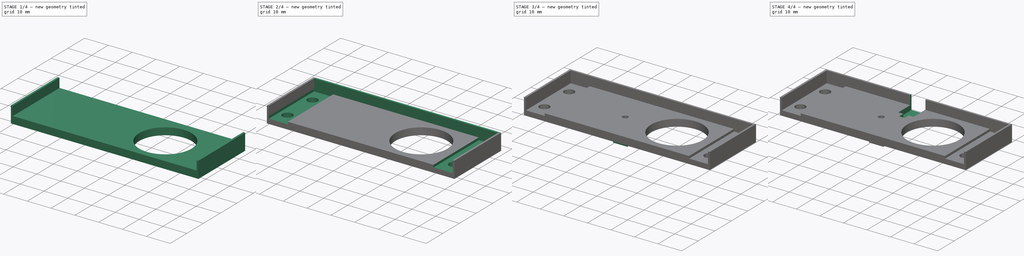
[diagram: build sequence overview — one tinted view per stage of 4, left to right]
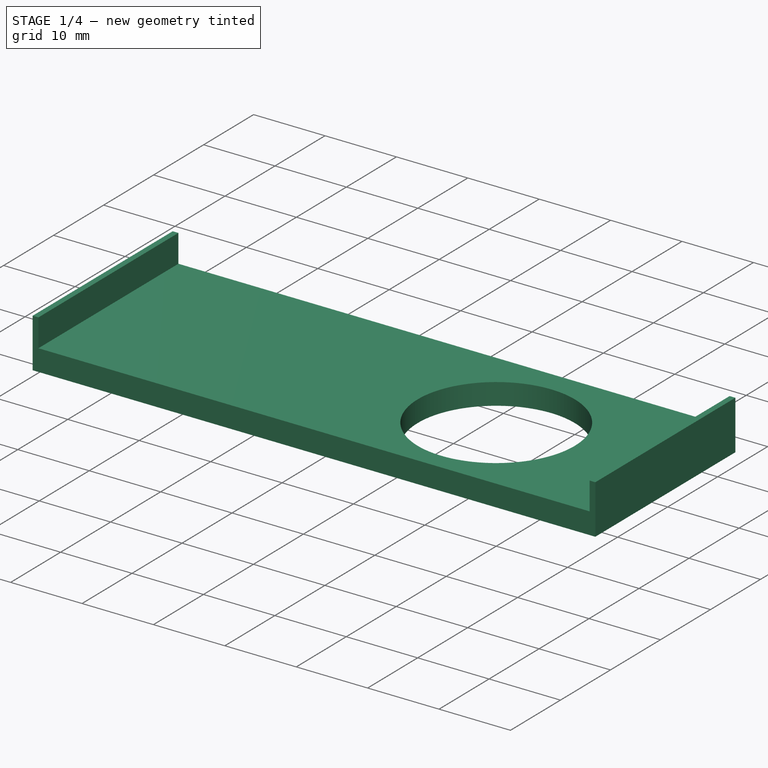
[diagram: stage 1 of 4 — iso view after this stage's code; geometry added in this stage tinted green]
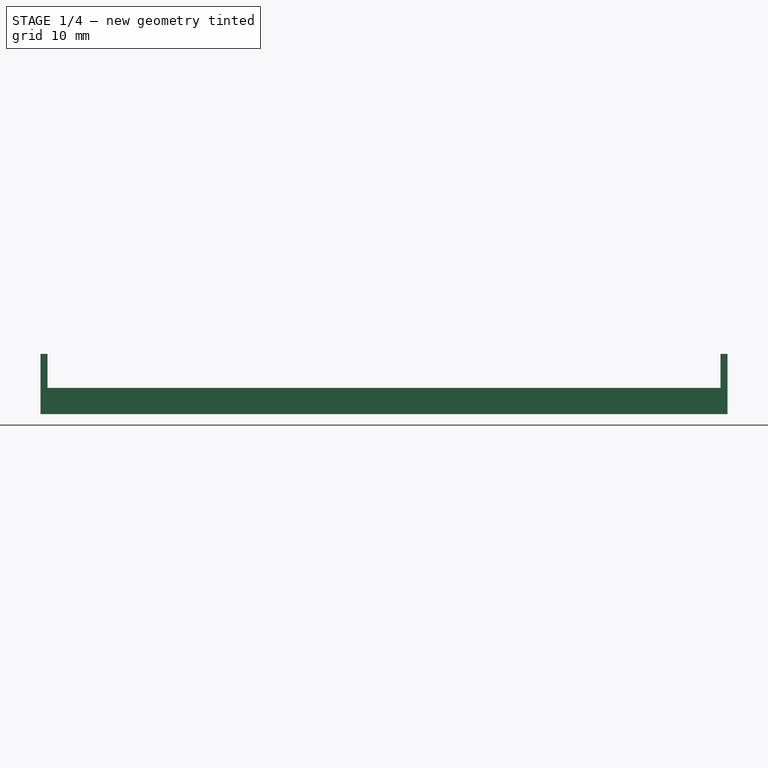
[diagram: stage 1 of 4 — front view after this stage's code; geometry added in this stage tinted green]
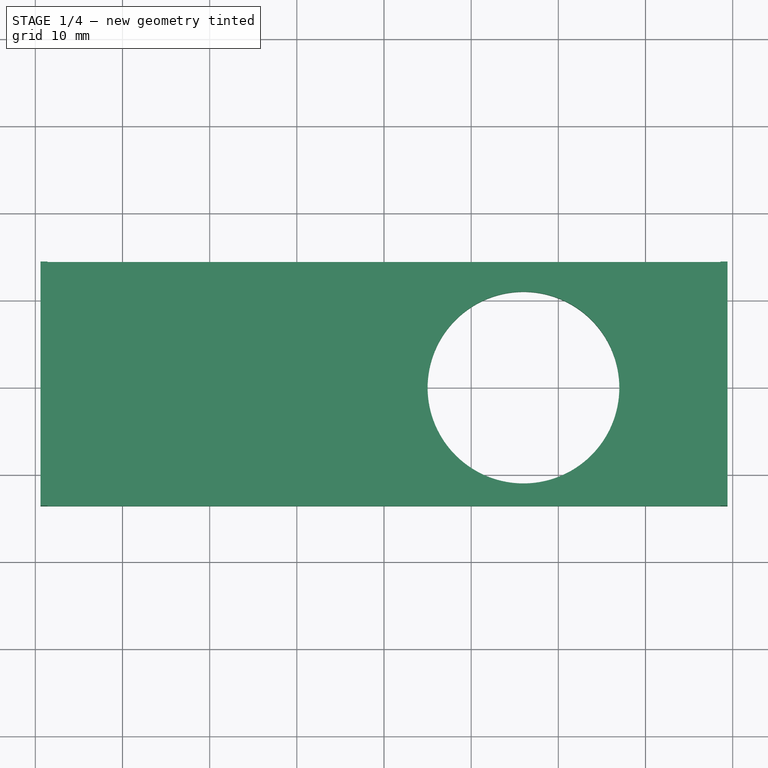
[diagram: stage 1 of 4 — top view after this stage's code; geometry added in this stage tinted green]
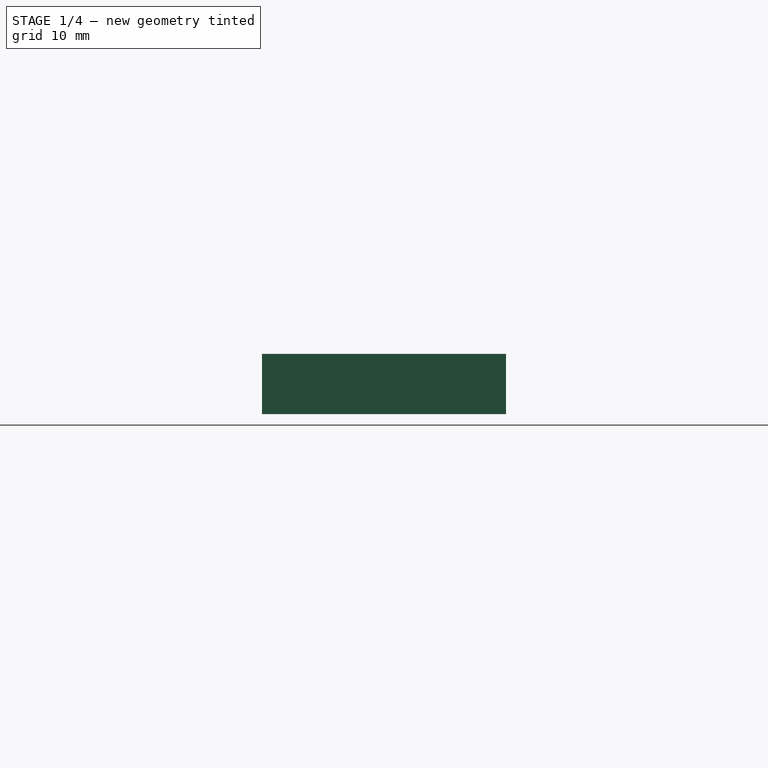
[diagram: stage 1 of 4 — right view after this stage's code; geometry added in this stage tinted green]
FCSTD DOCUMENT  (FreeCAD 0.18.4R)
Label: slide_base
License: All rights reserved
LicenseURL: http://en.wikipedia.org/wiki/All_rights_reserved
objects: Sketcher::SketchObject×11, PartDesign::Pocket×7, PartDesign::Pad×4, PartDesign::Body×1
note: 34 computed .brp shape members not serialized (recipe doc carries the construction recipe); baked Part::Feature solids carry a one-line shape summary decoded from their .brp

FEATURE [Sketcher::SketchObject] Sketch
  MapMode = 5
  Support = -> [XY_Plane]
  sketch-geometry (4):
    g0: LineSegment StartX=-39.4 StartY=14.4 StartZ=0 EndX=39.4 EndY=14.4 EndZ=0
    g1: LineSegment StartX=39.4 StartY=14.4 StartZ=0 EndX=39.4 EndY=-13.6 EndZ=0
    g2: LineSegment StartX=39.4 StartY=-13.6 StartZ=0 EndX=-39.4 EndY=-13.6 EndZ=0
    g3: LineSegment StartX=-39.4 StartY=-13.6 StartZ=0 EndX=-39.4 EndY=14.4 EndZ=0
  constraints (12):
    c: Coincident(g0,g1)
    c: Coincident(g1,g2)
    c: Coincident(g2,g3)
    c: Coincident(g3,g0)
    c: Horizontal(g0)
    c: Horizontal(g2)
    c: Vertical(g1)
    c: Vertical(g3)
    c: DistanceX(g-1,g0) = 39.4
    c: DistanceX(g0,g-1) = 39.4
    c: Distance(g3) = 28
    c: DistanceY(g2,g-1) = 13.6
FEATURE [PartDesign::Pad] Pad
  Length = 3
  Length2 = 100
  Profile = -> Sketch
  Type = 0
FEATURE [Sketcher::SketchObject] Sketch001
  MapMode = 5
  Placement = pos=(0,0,3) rot=(0,0,1;0rad)
  Support = -> [Pad]
  sketch-geometry (1):
    g0: Circle CenterX=16 CenterY=0 CenterZ=0 NormalX=0 NormalY=0 NormalZ=1 AngleXU=0 Radius=11
  constraints (3):
    c: PointOnObject(g0,g-1)
    c: DistanceX(g-1,g0) = 16
    c: Diameter(g0) = 22
FEATURE [PartDesign::Pocket] Pocket
  BaseFeature = -> Pad
  Length = 3.9
  Length2 = 100
  Profile = -> Sketch001
  Type = 0
FEATURE [Sketcher::SketchObject] Sketch002
  MapMode = 5
  Placement = pos=(0,0,3) rot=(0,0,1;0rad)
  Support = -> [Pocket]
  sketch-geometry (8):
    g0: LineSegment StartX=39.4 StartY=14.4 StartZ=0 EndX=38.6 EndY=14.4 EndZ=0
    g1: LineSegment StartX=38.6 StartY=14.4 StartZ=0 EndX=38.6 EndY=-13.6 EndZ=0
    g2: LineSegment StartX=38.6 StartY=-13.6 StartZ=0 EndX=39.4 EndY=-13.6 EndZ=0
    g3: LineSegment StartX=39.4 StartY=-13.6 StartZ=0 EndX=39.4 EndY=14.4 EndZ=0
    g4: LineSegment StartX=-39.4 StartY=14.4 StartZ=0 EndX=-38.6 EndY=14.4 EndZ=0
    g5: LineSegment StartX=-38.6 StartY=14.4 StartZ=0 EndX=-38.6 EndY=-13.6 EndZ=0
    g6: LineSegment StartX=-38.6 StartY=-13.6 StartZ=0 EndX=-39.4 EndY=-13.6 EndZ=0
    g7: LineSegment StartX=-39.4 StartY=-13.6 StartZ=0 EndX=-39.4 EndY=14.4 EndZ=0
  constraints (24):
    c: Coincident(g0,g1)
    c: Coincident(g1,g2)
    c: Coincident(g2,g3)
    c: Coincident(g3,g0)
    c: Horizontal(g0)
    c: Horizontal(g2)
    c: Vertical(g1)
    c: Vertical(g3)
    c: DistanceX(g-1,g0) = 39.4
    c: Distance(g0) = 0.8
    c: Distance(g3) = 28
    c: DistanceY(g2,g-1) = 13.6
    c: Coincident(g4,g5)
    c: Coincident(g5,g6)
    c: Coincident(g6,g7)
    c: Coincident(g7,g4)
    c: Horizontal(g4)
    c: Horizontal(g6)
    c: Vertical(g5)
    c: Vertical(g7)
    c: DistanceX(g4,g-1) = 39.4
    c: Distance(g4) = 0.8
    c: Distance(g7) = 28
    c: DistanceY(g5,g-1) = 13.6
FEATURE [PartDesign::Pad] Pad001
  BaseFeature = -> Pocket
  Length = 3.9
  Length2 = 100
  Profile = -> Sketch002
  Type = 0
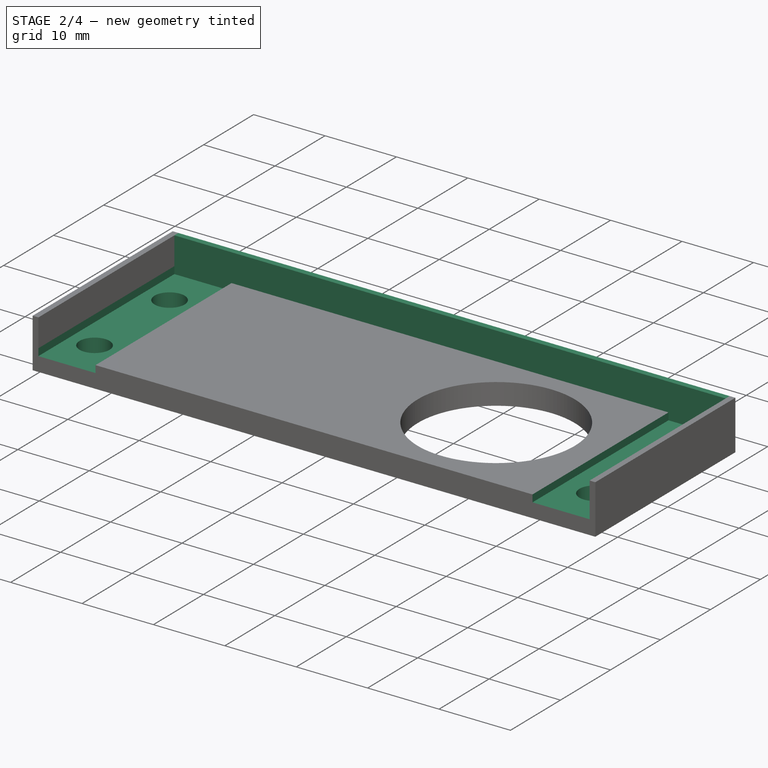
[diagram: stage 2 of 4 — iso view after this stage's code; geometry added in this stage tinted green]
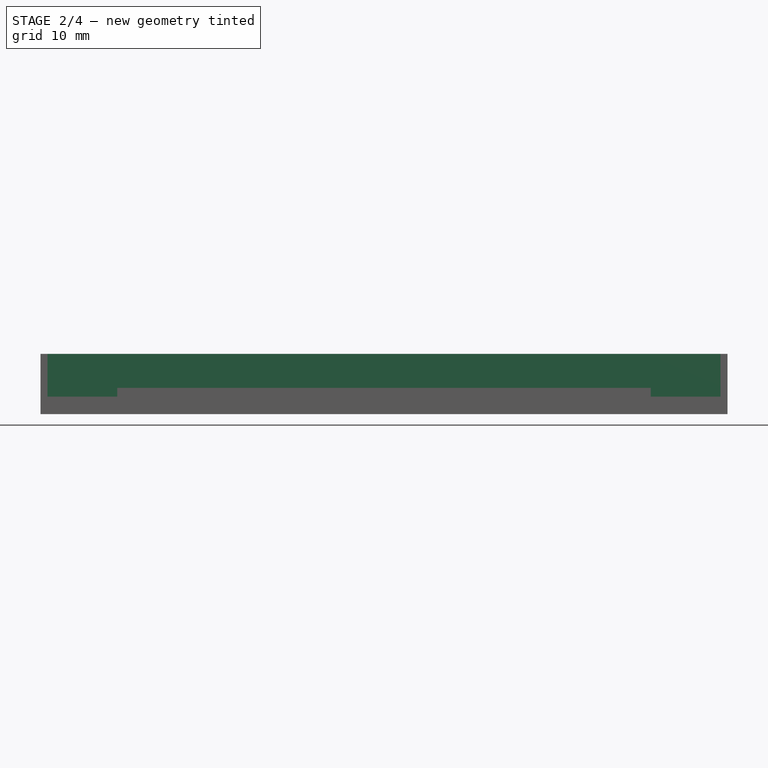
[diagram: stage 2 of 4 — front view after this stage's code; geometry added in this stage tinted green]
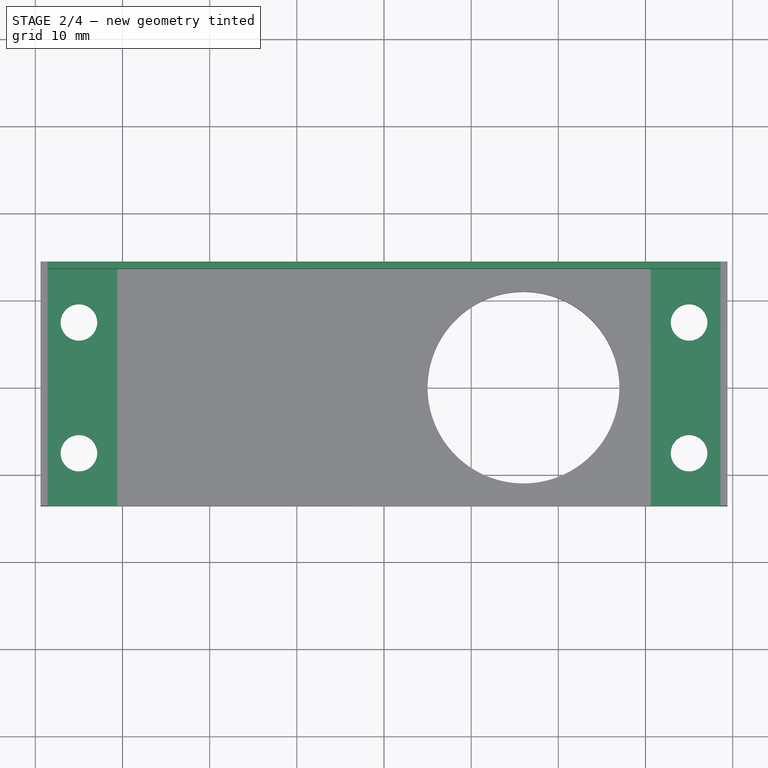
[diagram: stage 2 of 4 — top view after this stage's code; geometry added in this stage tinted green]
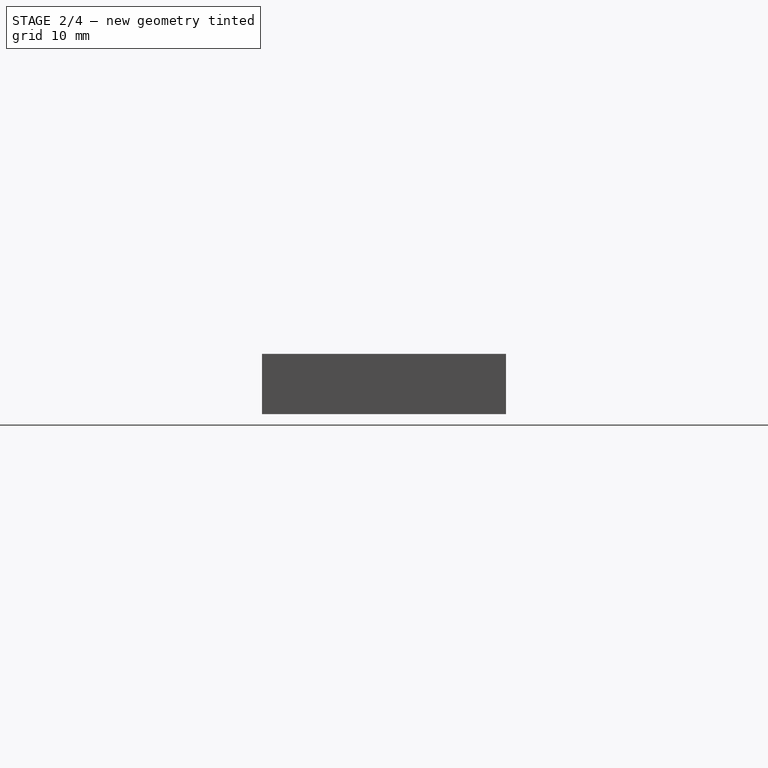
[diagram: stage 2 of 4 — right view after this stage's code; geometry added in this stage tinted green]
FEATURE [Sketcher::SketchObject] Sketch003
  MapMode = 5
  Placement = pos=(0,0,3) rot=(0,0,1;0rad)
  Support = -> [Pad001]
  sketch-geometry (4):
    g0: LineSegment StartX=-38.6 StartY=14.4 StartZ=0 EndX=38.6 EndY=14.4 EndZ=0
    g1: LineSegment StartX=38.6 StartY=14.4 StartZ=0 EndX=38.6 EndY=13.6 EndZ=0
    g2: LineSegment StartX=38.6 StartY=13.6 StartZ=0 EndX=-38.6 EndY=13.6 EndZ=0
    g3: LineSegment StartX=-38.6 StartY=13.6 StartZ=0 EndX=-38.6 EndY=14.4 EndZ=0
  constraints (12):
    c: Coincident(g0,g1)
    c: Coincident(g1,g2)
    c: Coincident(g2,g3)
    c: Coincident(g3,g0)
    c: Horizontal(g0)
    c: Horizontal(g2)
    c: Vertical(g1)
    c: Vertical(g3)
    c: DistanceX(g0,g-1) = 38.6
    c: DistanceX(g-1,g1) = 38.6
    c: Distance(g3) = 0.8
    c: DistanceY(g-1,g2) = 13.6
FEATURE [PartDesign::Pad] Pad002
  BaseFeature = -> Pad001
  Length = 3.9
  Length2 = 100
  Profile = -> Sketch003
  Type = 0
FEATURE [Sketcher::SketchObject] Sketch004
  MapMode = 5
  Placement = pos=(0,0,3) rot=(0,0,1;0rad)
  Support = -> [Pad002]
  sketch-geometry (8):
    g0: LineSegment StartX=30.6 StartY=-13.6 StartZ=0 EndX=38.6 EndY=-13.6 EndZ=0
    g1: LineSegment StartX=38.6 StartY=-13.6 StartZ=0 EndX=38.6 EndY=13.6 EndZ=0
    g2: LineSegment StartX=38.6 StartY=13.6 StartZ=0 EndX=30.6 EndY=13.6 EndZ=0
    g3: LineSegment StartX=30.6 StartY=13.6 StartZ=0 EndX=30.6 EndY=-13.6 EndZ=0
    g4: LineSegment StartX=-38.6 StartY=-13.6 StartZ=0 EndX=-30.6 EndY=-13.6 EndZ=0
    g5: LineSegment StartX=-30.6 StartY=-13.6 StartZ=0 EndX=-30.6 EndY=13.6 EndZ=0
    g6: LineSegment StartX=-30.6 StartY=13.6 StartZ=0 EndX=-38.6 EndY=13.6 EndZ=0
    g7: LineSegment StartX=-38.6 StartY=13.6 StartZ=0 EndX=-38.6 EndY=-13.6 EndZ=0
  constraints (24):
    c: Coincident(g0,g1)
    c: Coincident(g1,g2)
    c: Coincident(g2,g3)
    c: Coincident(g3,g0)
    c: Horizontal(g0)
    c: Horizontal(g2)
    c: Vertical(g1)
    c: Vertical(g3)
    c: DistanceY(g0,g-1) = 13.6
    c: DistanceX(g-1,g0) = 38.6
    c: Distance(g0) = 8
    c: Distance(g3) = 27.2
    c: Coincident(g4,g5)
    c: Coincident(g5,g6)
    c: Coincident(g6,g7)
    c: Coincident(g7,g4)
    c: Horizontal(g4)
    c: Horizontal(g6)
    c: Vertical(g5)
    c: Vertical(g7)
    c: DistanceY(g4,g-1) = 13.6
    c: Distance(g5) = 27.2
    c: DistanceX(g4,g-1) = 38.6
    c: Distance(g4) = 8
FEATURE [PartDesign::Pocket] Pocket001
  BaseFeature = -> Pad002
  Length = 1
  Length2 = 100
  Profile = -> Sketch004
  Type = 0
FEATURE [Sketcher::SketchObject] Sketch005
  MapMode = 5
  Placement = pos=(0,0,3) rot=(0,0,1;0rad)
  Support = -> [Pocket001]
  sketch-geometry (4):
    g0: Circle CenterX=35 CenterY=7.5 CenterZ=0 NormalX=0 NormalY=0 NormalZ=1 AngleXU=0 Radius=2.1
    g1: Circle CenterX=35 CenterY=-7.5 CenterZ=0 NormalX=0 NormalY=0 NormalZ=1 AngleXU=0 Radius=2.1
    g2: Circle CenterX=-35 CenterY=7.5 CenterZ=0 NormalX=0 NormalY=0 NormalZ=1 AngleXU=0 Radius=2.1
    g3: Circle CenterX=-35 CenterY=-7.5 CenterZ=0 NormalX=0 NormalY=0 NormalZ=1 AngleXU=0 Radius=2.1
  constraints (12):
    c: Diameter(g0) = 4.2
    c: DistanceY(g-1,g0) = 7.5
    c: DistanceX(g-1,g0) = 35
    c: DistanceX(g-1,g1) = 35
    c: DistanceY(g1,g-1) = 7.5
    c: Diameter(g1) = 4.2
    c: DistanceX(g2,g-1) = 35
    c: DistanceY(g-1,g2) = 7.5
    c: Diameter(g2) = 4.2
    c: DistanceX(g3,g-1) = 35
    c: DistanceY(g3,g-1) = 7.5
    c: Diameter(g3) = 4.2
FEATURE [PartDesign::Pocket] Pocket002
  BaseFeature = -> Pocket001
  Length = 5
  Length2 = 100
  Profile = -> Sketch005
  Type = 0
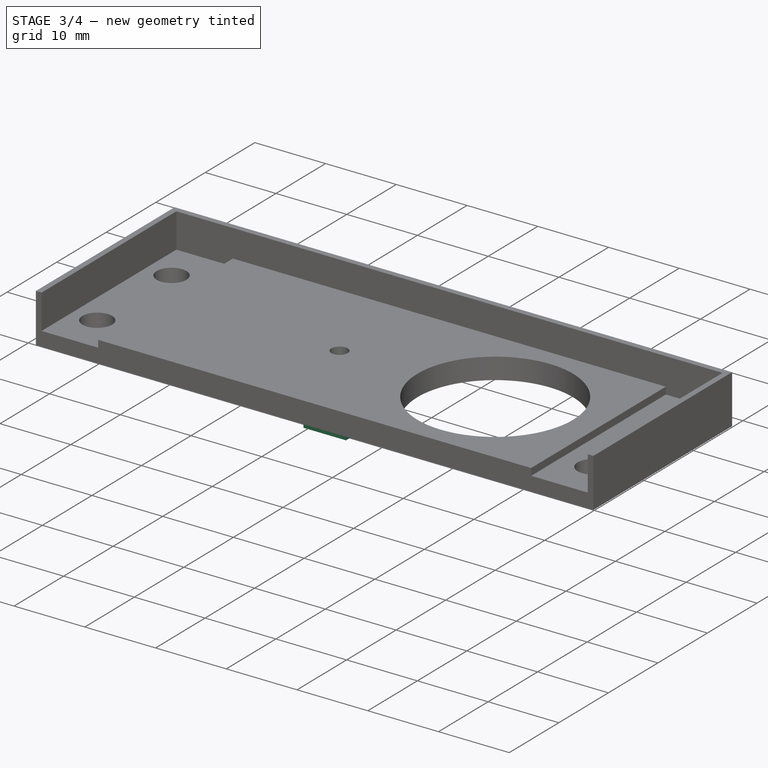
[diagram: stage 3 of 4 — iso view after this stage's code; geometry added in this stage tinted green]
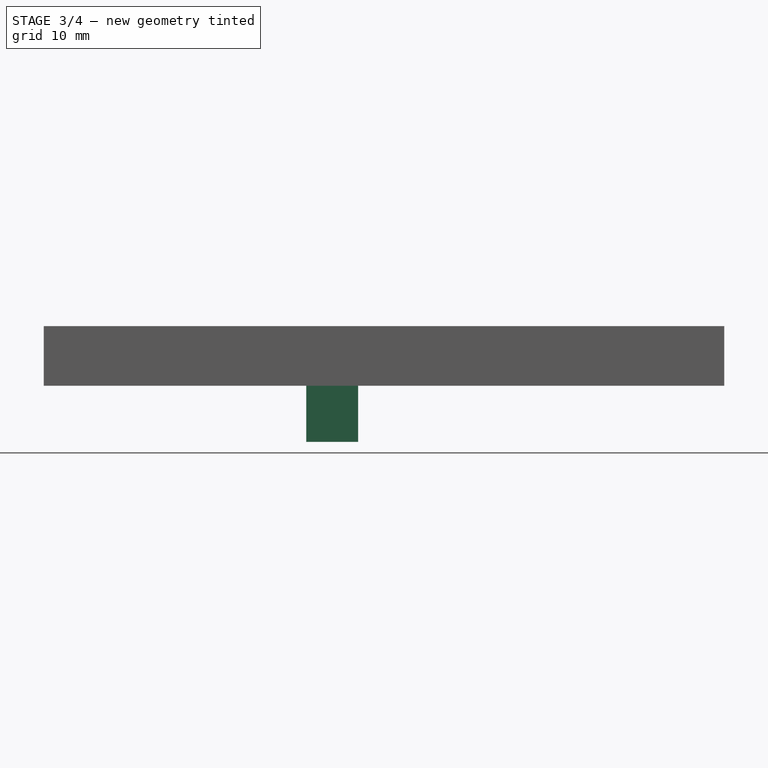
[diagram: stage 3 of 4 — front view after this stage's code; geometry added in this stage tinted green]
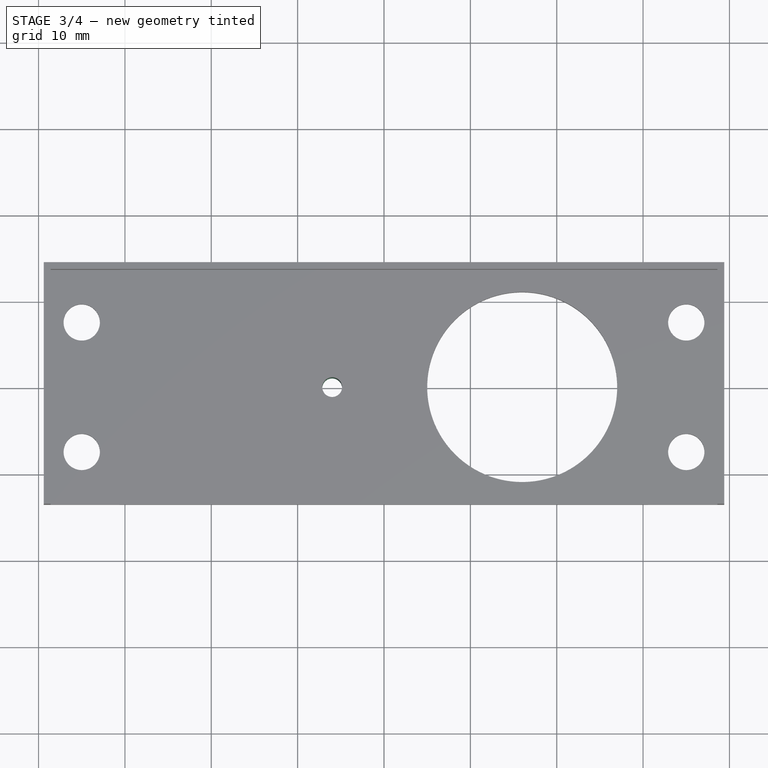
[diagram: stage 3 of 4 — top view after this stage's code; geometry added in this stage tinted green]
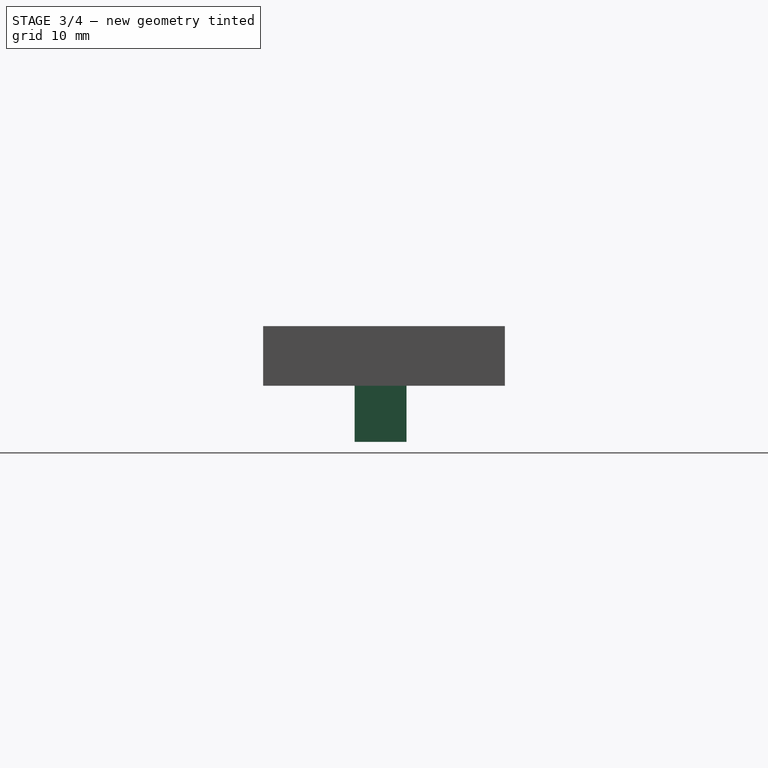
[diagram: stage 3 of 4 — right view after this stage's code; geometry added in this stage tinted green]
FEATURE [Sketcher::SketchObject] Sketch006
  MapMode = 5
  Placement = pos=(0,0,0) rot=(1,0,0;3.14159rad)
  Support = -> [Pocket002]
  sketch-geometry (4):
    g0: LineSegment StartX=-9 StartY=3 StartZ=0 EndX=-3 EndY=3 EndZ=0
    g1: LineSegment StartX=-3 StartY=3 StartZ=0 EndX=-3 EndY=-3 EndZ=0
    g2: LineSegment StartX=-3 StartY=-3 StartZ=0 EndX=-9 EndY=-3 EndZ=0
    g3: LineSegment StartX=-9 StartY=-3 StartZ=0 EndX=-9 EndY=3 EndZ=0
  constraints (12):
    c: Coincident(g0,g1)
    c: Coincident(g1,g2)
    c: Coincident(g2,g3)
    c: Coincident(g3,g0)
    c: Horizontal(g0)
    c: Horizontal(g2)
    c: Vertical(g1)
    c: Vertical(g3)
    c: Distance(g0) = 6
    c: Distance(g1) = 6
    c: DistanceY(g2,g-1) = 3
    c: DistanceX(g0,g-1) = 3
FEATURE [PartDesign::Pad] Pad003
  BaseFeature = -> Pocket002
  Length = 6.5
  Length2 = 100
  Profile = -> Sketch006
  Type = 0
FEATURE [Sketcher::SketchObject] Sketch007
  MapMode = 5
  Placement = pos=(0,0,-6.5) rot=(1,0,0;3.14159rad)
  Support = -> [Pad003]
  sketch-geometry (1):
    g0: Circle CenterX=-6 CenterY=0 CenterZ=0 NormalX=0 NormalY=0 NormalZ=1 AngleXU=0 Radius=1.15
  constraints (3):
    c: PointOnObject(g0,g-1)
    c: DistanceX(g0,g-1) = 6
    c: Diameter(g0) = 2.3
FEATURE [PartDesign::Pocket] Pocket003
  BaseFeature = -> Pad003
  Length = 10
  Length2 = 100
  Profile = -> Sketch007
  Type = 0
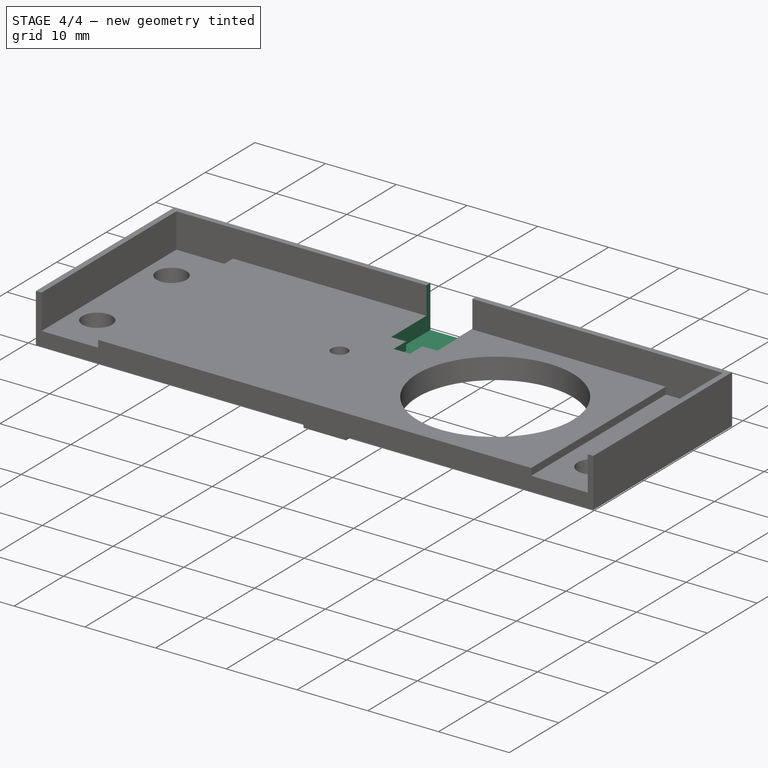
[diagram: stage 4 of 4 — iso view after this stage's code; geometry added in this stage tinted green]
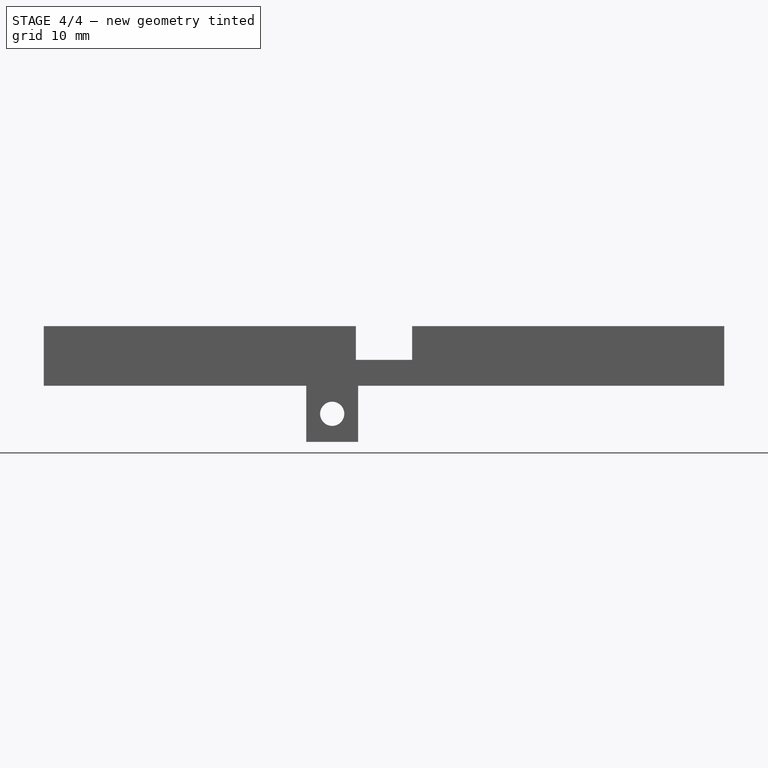
[diagram: stage 4 of 4 — front view after this stage's code; geometry added in this stage tinted green]
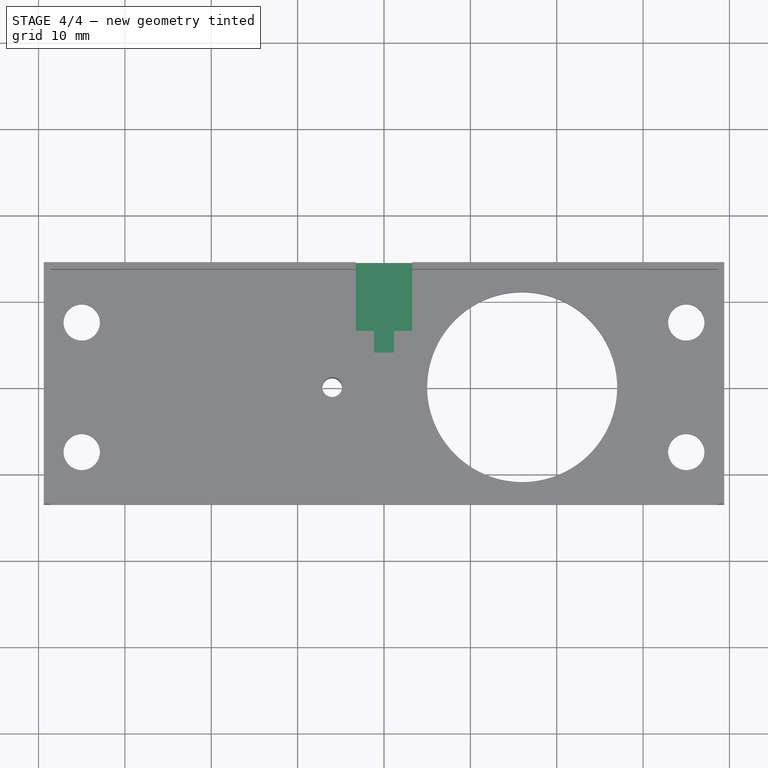
[diagram: stage 4 of 4 — top view after this stage's code; geometry added in this stage tinted green]
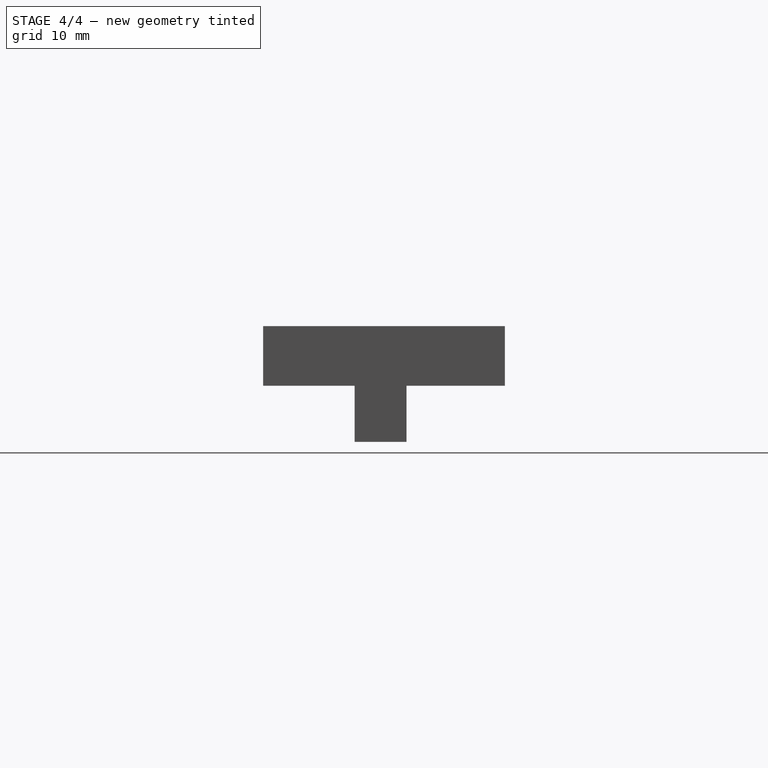
[diagram: stage 4 of 4 — right view after this stage's code; geometry added in this stage tinted green]
FEATURE [Sketcher::SketchObject] Sketch008
  MapMode = 5
  Placement = pos=(0,-3,0) rot=(1,0,0;1.5708rad)
  Support = -> [Pocket003]
  sketch-geometry (1):
    g0: Circle CenterX=-6 CenterY=-3.25 CenterZ=0 NormalX=0 NormalY=0 NormalZ=1 AngleXU=0 Radius=1.4
  constraints (3):
    c: DistanceX(g0,g-1) = 6
    c: DistanceY(g0,g-1) = 3.25
    c: Diameter(g0) = 2.8
FEATURE [PartDesign::Pocket] Pocket004
  BaseFeature = -> Pocket003
  Length = 6
  Length2 = 100
  Profile = -> Sketch008
  Type = 0
FEATURE [Sketcher::SketchObject] Sketch009
  MapMode = 5
  Placement = pos=(0,0,3) rot=(0,0,1;0rad)
  Support = -> [Pocket004]
  sketch-geometry (4):
    g0: LineSegment StartX=-1.15 StartY=6.5 StartZ=0 EndX=1.15 EndY=6.5 EndZ=0
    g1: LineSegment StartX=1.15 StartY=6.5 StartZ=0 EndX=1.15 EndY=4 EndZ=0
    g2: LineSegment StartX=1.15 StartY=4 StartZ=0 EndX=-1.15 EndY=4 EndZ=0
    g3: LineSegment StartX=-1.15 StartY=4 StartZ=0 EndX=-1.15 EndY=6.5 EndZ=0
  constraints (12):
    c: Coincident(g0,g1)
    c: Coincident(g1,g2)
    c: Coincident(g2,g3)
    c: Coincident(g3,g0)
    c: Horizontal(g0)
    c: Horizontal(g2)
    c: Vertical(g1)
    c: Vertical(g3)
    c: Distance(g0) = 2.3
    c: Distance(g1) = 2.5
    c: DistanceX(g2,g-1) = 1.15
    c: DistanceY(g-1,g0) = 6.5
FEATURE [PartDesign::Pocket] Pocket005
  BaseFeature = -> Pocket004
  Length = 1.2
  Length2 = 100
  Profile = -> Sketch009
  Type = 0
FEATURE [Sketcher::SketchObject] Sketch011
  MapMode = 5
  Placement = pos=(0,0,6.9) rot=(0,0,1;0rad)
  Support = -> [Pocket005]
  sketch-geometry (4):
    g0: LineSegment StartX=-3.25 StartY=14.5 StartZ=0 EndX=3.25 EndY=14.5 EndZ=0
    g1: LineSegment StartX=3.25 StartY=14.5 StartZ=0 EndX=3.25 EndY=6.5 EndZ=0
    g2: LineSegment StartX=3.25 StartY=6.5 StartZ=0 EndX=-3.25 EndY=6.5 EndZ=0
    g3: LineSegment StartX=-3.25 StartY=6.5 StartZ=0 EndX=-3.25 EndY=14.5 EndZ=0
  constraints (12):
    c: Coincident(g0,g1)
    c: Coincident(g1,g2)
    c: Coincident(g2,g3)
    c: Coincident(g3,g0)
    c: Horizontal(g0)
    c: Horizontal(g2)
    c: Vertical(g1)
    c: Vertical(g3)
    c: DistanceY(g-1,g1) = 6.5
    c: Distance(g2) = 6.5
    c: DistanceX(g2,g-1) = 3.25
    c: Distance(g3) = 8
FEATURE [PartDesign::Pocket] Pocket006
  BaseFeature = -> Pocket005
  Length = 6
  Length2 = 100
  Profile = -> Sketch011
  Type = 0
FEATURE [PartDesign::Body] Body
  Group = -> [Sketch,Pad,Sketch001,Pocket,Sketch002,Pad001,Sketch003,Pad002,Sketch004,Pocket001,Sketch005,Pocket002,Sketch006,Pad003,Sketch007,Pocket003,Sketch008,Pocket004,Sketch009,Pocket005,Sketch011,Pocket006]
  Origin = -> Origin
  Tip = -> Pocket006
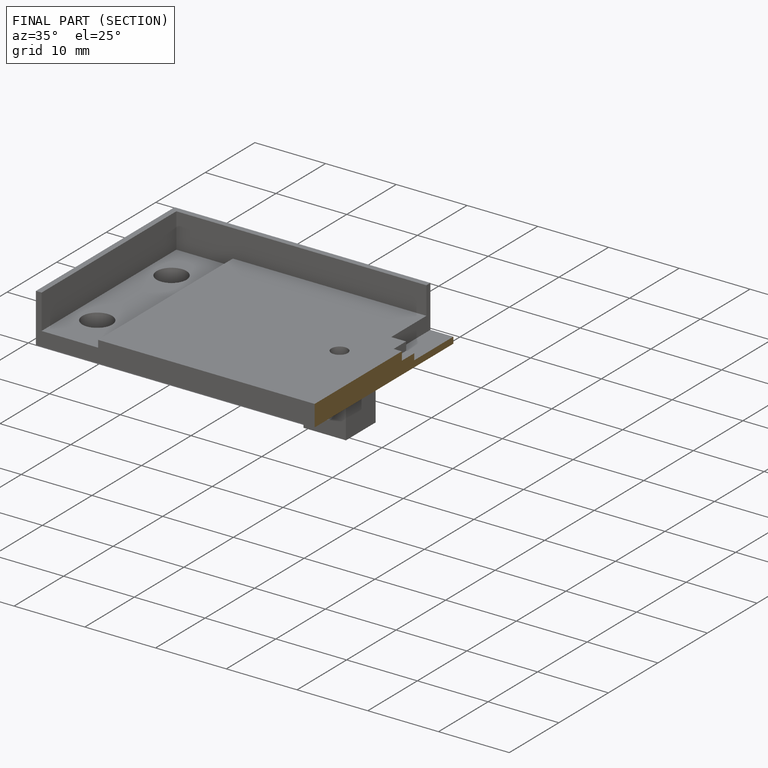
[diagram: finished part — half-section view (interior)]
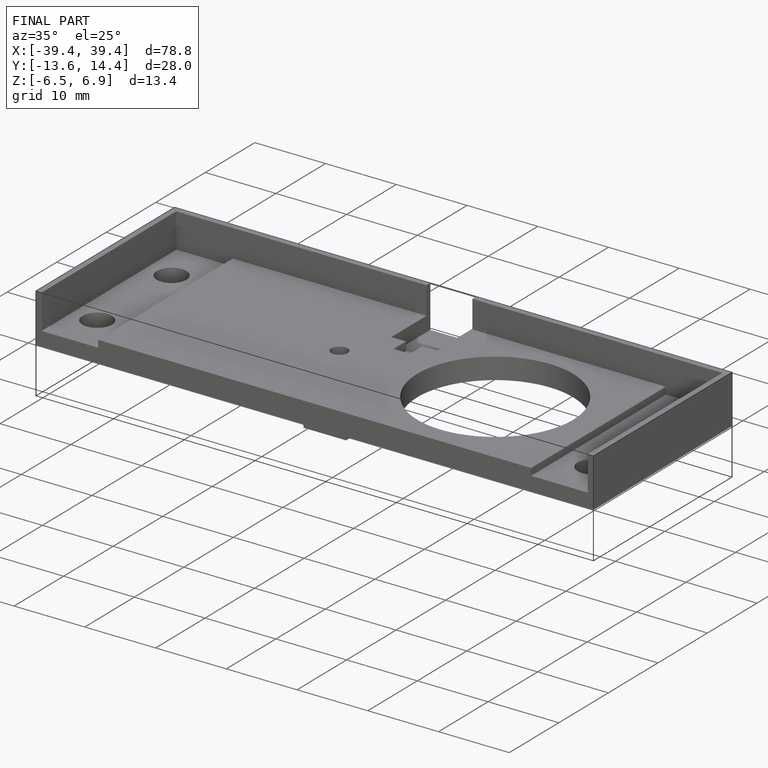
[diagram: finished part — iso view with bounding-box wireframe]
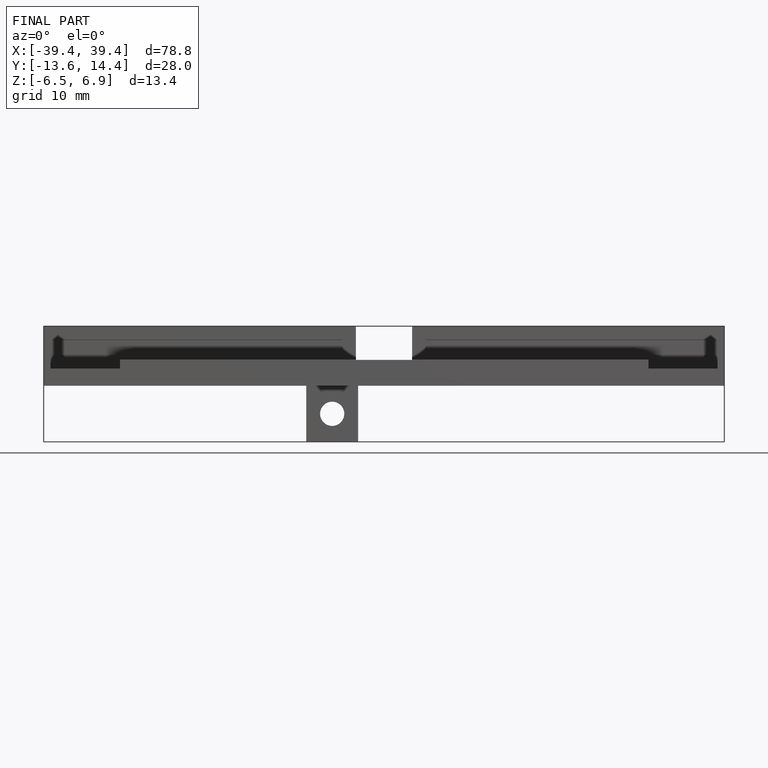
[diagram: finished part — front view with bounding-box wireframe]
